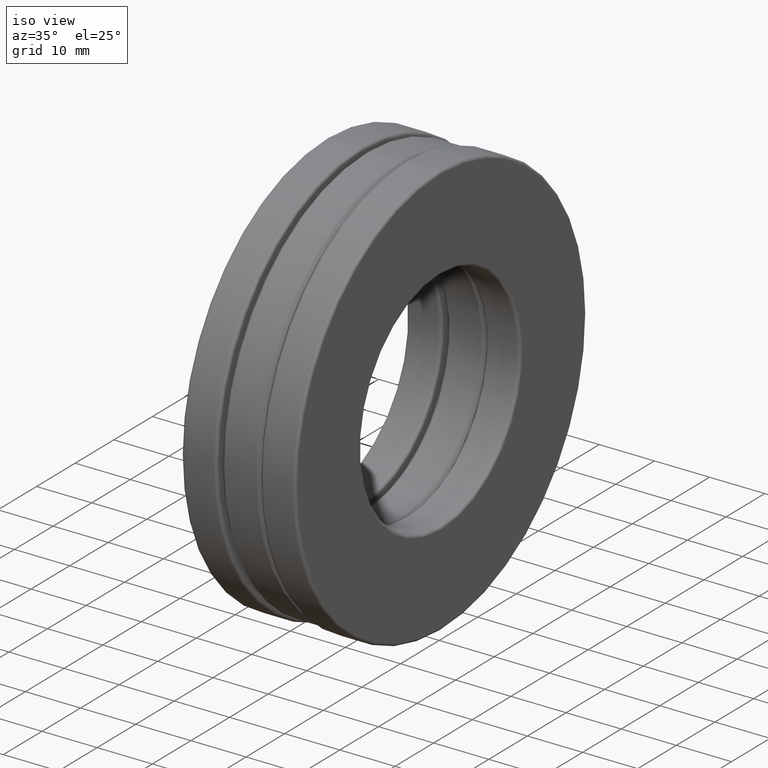
[diagram: clean part render]
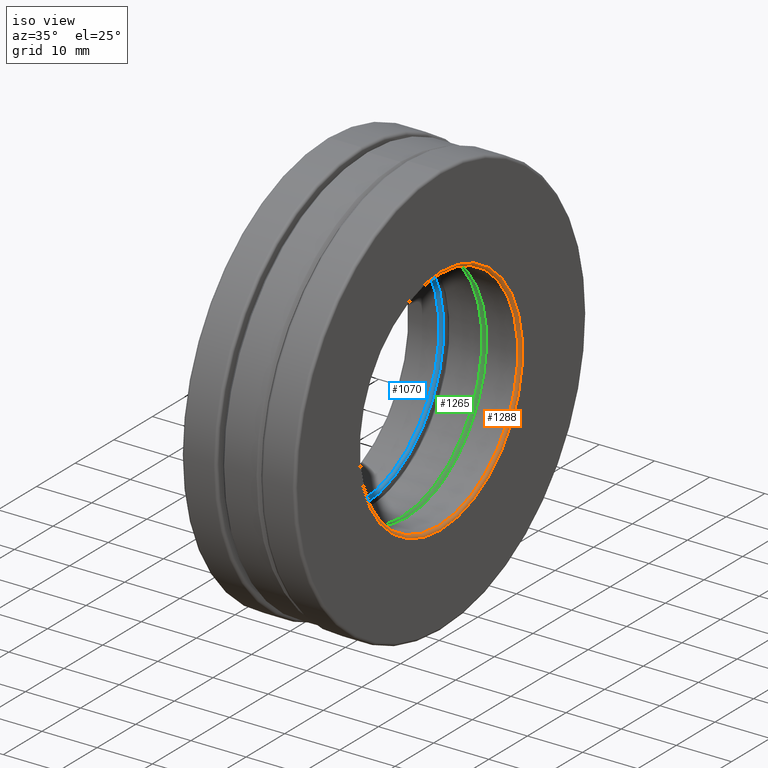
[diagram: same view with three faces highlighted in distinct colors, each labeled with its STEP entity id]
A machine part, iso view with three faces highlighted in distinct colors.
Their STEP definitions:

[orange] entity #1288 — the highlighted toroidal blend (fillet) surface has major radius 21.1455 mm and minor (blend) radius 0.508 mm.
#96 = FACE_OUTER_BOUND ( 'NONE', #724, .T. ) ;
#223 = CARTESIAN_POINT ( 'NONE',  ( 0.3860000000000000700, 0.0000000000000000000, 0.0000000000000000000 ) ) ;
#235 = CARTESIAN_POINT ( 'NONE',  ( 0.3860000000000000700, 0.0000000000000000000, 0.0000000000000000000 ) ) ;
#248 = ORIENTED_EDGE ( 'NONE', *, *, #1181, .T. ) ;
#347 = DIRECTION ( 'NONE',  ( 0.0000000000000000000, 0.0000000000000000000, 1.000000000000000000 ) ) ;
#453 = DIRECTION ( 'NONE',  ( 0.0000000000000000000, 0.0000000000000000000, 1.000000000000000000 ) ) ;
#486 = CIRCLE ( 'NONE', #1424, 0.8325000000000000200 ) ;
#489 = ORIENTED_EDGE ( 'NONE', *, *, #908, .F. ) ;
#601 = CARTESIAN_POINT ( 'NONE',  ( 0.3860000000000000700, 0.0000000000000000000, 0.8125000000000001100 ) ) ;
#636 = FACE_OUTER_BOUND ( 'NONE', #1120, .T. ) ;
#673 = TOROIDAL_SURFACE ( 'NONE', #1211, 0.8325000000000000200, 0.02000000000000002500 ) ;
#724 = EDGE_LOOP ( 'NONE', ( #248 ) ) ;
#872 = VERTEX_POINT ( 'NONE', #1462 ) ;
#893 = AXIS2_PLACEMENT_3D ( 'NONE', #223, #1468, #453 ) ;
#908 = EDGE_CURVE ( 'NONE', #872, #872, #486, .T. ) ;
#967 = VERTEX_POINT ( 'NONE', #601 ) ;
#968 = CIRCLE ( 'NONE', #893, 0.8125000000000001100 ) ;
#990 = CARTESIAN_POINT ( 'NONE',  ( 0.4060000000000001900, 0.0000000000000000000, 0.0000000000000000000 ) ) ;
#1001 = DIRECTION ( 'NONE',  ( -1.000000000000000000, -0.0000000000000000000, -0.0000000000000000000 ) ) ;
#1106 = DIRECTION ( 'NONE',  ( 0.0000000000000000000, 0.0000000000000000000, 1.000000000000000000 ) ) ;
#1120 = EDGE_LOOP ( 'NONE', ( #489 ) ) ;
#1181 = EDGE_CURVE ( 'NONE', #967, #967, #968, .T. ) ;
#1211 = AXIS2_PLACEMENT_3D ( 'NONE', #235, #1252, #347 ) ;
#1252 = DIRECTION ( 'NONE',  ( -1.000000000000000000, -0.0000000000000000000, -0.0000000000000000000 ) ) ;
#1288 = ADVANCED_FACE ( 'NONE', ( #636, #96 ), #673, .T. ) ;
#1424 = AXIS2_PLACEMENT_3D ( 'NONE', #990, #1001, #1106 ) ;
#1462 = CARTESIAN_POINT ( 'NONE',  ( 0.4060000000000001900, 0.0000000000000000000, 0.8325000000000000200 ) ) ;
#1468 = DIRECTION ( 'NONE',  ( -1.000000000000000000, -0.0000000000000000000, -0.0000000000000000000 ) ) ;

[blue] entity #1070 — the highlighted toroidal blend (fillet) surface has major radius 21.1455 mm and minor (blend) radius 0.508 mm.
#56 = EDGE_CURVE ( 'NONE', #369, #369, #1454, .T. ) ;
#135 = VERTEX_POINT ( 'NONE', #255 ) ;
#148 = EDGE_LOOP ( 'NONE', ( #1386 ) ) ;
#217 = DIRECTION ( 'NONE',  ( 0.0000000000000000000, 0.0000000000000000000, 1.000000000000000000 ) ) ;
#255 = CARTESIAN_POINT ( 'NONE',  ( -0.1560000000000000000, 0.0000000000000000000, 0.8325000000000000200 ) ) ;
#369 = VERTEX_POINT ( 'NONE', #666 ) ;
#487 = CARTESIAN_POINT ( 'NONE',  ( -0.1759999999999999300, 0.0000000000000000000, 0.0000000000000000000 ) ) ;
#596 = DIRECTION ( 'NONE',  ( 0.0000000000000000000, 0.0000000000000000000, 1.000000000000000000 ) ) ;
#604 = AXIS2_PLACEMENT_3D ( 'NONE', #843, #945, #1392 ) ;
#666 = CARTESIAN_POINT ( 'NONE',  ( -0.1759999999999999300, 0.0000000000000000000, 0.8125000000000000000 ) ) ;
#794 = DIRECTION ( 'NONE',  ( -1.000000000000000000, -0.0000000000000000000, -0.0000000000000000000 ) ) ;
#812 = EDGE_LOOP ( 'NONE', ( #896 ) ) ;
#843 = CARTESIAN_POINT ( 'NONE',  ( -0.1560000000000000000, 0.0000000000000000000, 0.0000000000000000000 ) ) ;
#896 = ORIENTED_EDGE ( 'NONE', *, *, #56, .T. ) ;
#919 = CARTESIAN_POINT ( 'NONE',  ( -0.1759999999999999300, 0.0000000000000000000, 0.0000000000000000000 ) ) ;
#945 = DIRECTION ( 'NONE',  ( -1.000000000000000000, -0.0000000000000000000, -0.0000000000000000000 ) ) ;
#952 = TOROIDAL_SURFACE ( 'NONE', #1165, 0.8325000000000000200, 0.02000000000000000700 ) ;
#1069 = EDGE_CURVE ( 'NONE', #135, #135, #1146, .T. ) ;
#1070 = ADVANCED_FACE ( 'NONE', ( #1426, #1284 ), #952, .T. ) ;
#1146 = CIRCLE ( 'NONE', #604, 0.8325000000000000200 ) ;
#1165 = AXIS2_PLACEMENT_3D ( 'NONE', #487, #1280, #596 ) ;
#1280 = DIRECTION ( 'NONE',  ( -1.000000000000000000, -0.0000000000000000000, -0.0000000000000000000 ) ) ;
#1284 = FACE_OUTER_BOUND ( 'NONE', #812, .T. ) ;
#1373 = AXIS2_PLACEMENT_3D ( 'NONE', #919, #794, #217 ) ;
#1386 = ORIENTED_EDGE ( 'NONE', *, *, #1069, .F. ) ;
#1392 = DIRECTION ( 'NONE',  ( 0.0000000000000000000, 0.0000000000000000000, 1.000000000000000000 ) ) ;
#1426 = FACE_OUTER_BOUND ( 'NONE', #148, .T. ) ;
#1454 = CIRCLE ( 'NONE', #1373, 0.8125000000000000000 ) ;

[green] entity #1265 — the highlighted conical surface has half-angle 45 deg.
#183 = VERTEX_POINT ( 'NONE', #680 ) ;
#204 = CARTESIAN_POINT ( 'NONE',  ( 0.1360000000000000400, 0.0000000000000000000, 0.0000000000000000000 ) ) ;
#211 = CARTESIAN_POINT ( 'NONE',  ( 0.1360000000000000400, 0.0000000000000000000, 0.8525000000000001500 ) ) ;
#247 = DIRECTION ( 'NONE',  ( 0.0000000000000000000, 0.0000000000000000000, 1.000000000000000000 ) ) ;
#319 = ORIENTED_EDGE ( 'NONE', *, *, #1154, .F. ) ;
#403 = FACE_OUTER_BOUND ( 'NONE', #1078, .T. ) ;
#438 = VERTEX_POINT ( 'NONE', #211 ) ;
#508 = EDGE_CURVE ( 'NONE', #183, #183, #974, .T. ) ;
#516 = AXIS2_PLACEMENT_3D ( 'NONE', #204, #1222, #547 ) ;
#547 = DIRECTION ( 'NONE',  ( 0.0000000000000000000, 0.0000000000000000000, 1.000000000000000000 ) ) ;
#602 = CIRCLE ( 'NONE', #516, 0.8525000000000001500 ) ;
#603 = DIRECTION ( 'NONE',  ( -1.000000000000000000, -0.0000000000000000000, -0.0000000000000000000 ) ) ;
#680 = CARTESIAN_POINT ( 'NONE',  ( 0.1160000000000000300, 0.0000000000000000000, 0.8325000000000000200 ) ) ;
#803 = DIRECTION ( 'NONE',  ( 1.000000000000000000, 0.0000000000000000000, 0.0000000000000000000 ) ) ;
#840 = CONICAL_SURFACE ( 'NONE', #1371, 0.8525000000000001500, 0.7853981633974500600 ) ;
#974 = CIRCLE ( 'NONE', #1170, 0.8325000000000000200 ) ;
#1045 = CARTESIAN_POINT ( 'NONE',  ( 0.1160000000000000300, 0.0000000000000000000, 0.0000000000000000000 ) ) ;
#1078 = EDGE_LOOP ( 'NONE', ( #319 ) ) ;
#1122 = CARTESIAN_POINT ( 'NONE',  ( 0.1360000000000000400, 0.0000000000000000000, 0.0000000000000000000 ) ) ;
#1154 = EDGE_CURVE ( 'NONE', #438, #438, #602, .T. ) ;
#1170 = AXIS2_PLACEMENT_3D ( 'NONE', #1045, #603, #247 ) ;
#1222 = DIRECTION ( 'NONE',  ( -1.000000000000000000, -0.0000000000000000000, -0.0000000000000000000 ) ) ;
#1231 = DIRECTION ( 'NONE',  ( 0.0000000000000000000, 0.0000000000000000000, -1.000000000000000000 ) ) ;
#1265 = ADVANCED_FACE ( 'NONE', ( #1465, #403 ), #840, .F. ) ;
#1310 = ORIENTED_EDGE ( 'NONE', *, *, #508, .T. ) ;
#1371 = AXIS2_PLACEMENT_3D ( 'NONE', #1122, #803, #1231 ) ;
#1401 = EDGE_LOOP ( 'NONE', ( #1310 ) ) ;
#1465 = FACE_BOUND ( 'NONE', #1401, .T. ) ;